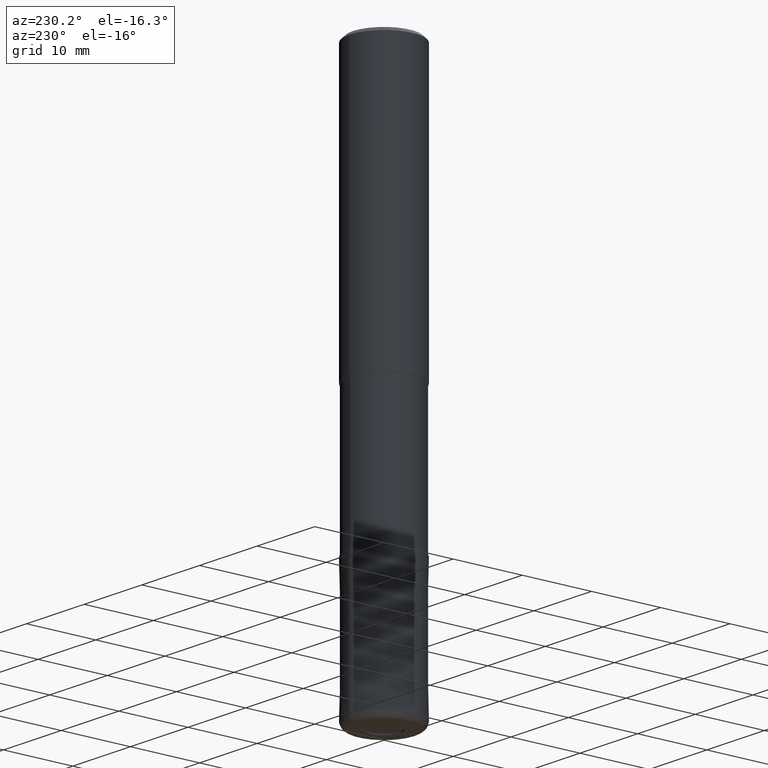
[diagram: clean part render]
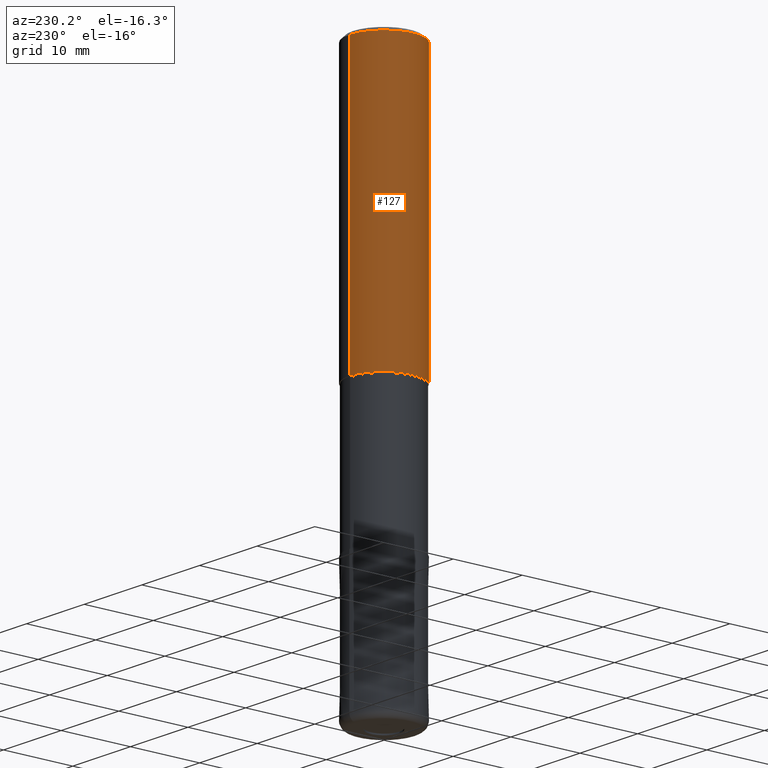
[diagram: same view with one face highlighted and labeled with its STEP entity id]
A machine part, auxiliary view. The second image highlights one B-rep face of the part: STEP entity #127.
In plain terms, the highlighted cylindrical surface (partial cylindrical patch) has radius 5 mm, axis along (-0, -0, 1).
Its self-contained STEP definition (entity closure, byte-faithful):
#127=ADVANCED_FACE('',(#315),#316,.T.);
#129=EDGE_CURVE('',#137,#133,#318,.T.);
#133=VERTEX_POINT('',#322);
#137=VERTEX_POINT('',#327);
#161=EDGE_CURVE('',#279,#133,#354,.T.);
#195=EDGE_CURVE('',#137,#251,#392,.T.);
#251=VERTEX_POINT('',#456);
#273=EDGE_CURVE('',#251,#279,#483,.T.);
#279=VERTEX_POINT('',#490);
#315=FACE_OUTER_BOUND('',#522,.T.);
#316=CYLINDRICAL_SURFACE('',#523,5.0);
#318=CIRCLE('',#526,5.0);
#322=CARTESIAN_POINT('',(0.0,5.0,-40.0));
#327=CARTESIAN_POINT('',(6.12303176911189E-016,-5.0,-40.0));
#354=LINE('',#569,#570);
#392=LINE('',#621,#622);
#456=CARTESIAN_POINT('',(6.12303176911189E-016,-5.0,-0.5));
#483=CIRCLE('',#733,5.0);
#490=CARTESIAN_POINT('',(0.0,5.0,-0.5));
#522=EDGE_LOOP('',(#763,#764,#765,#766));
#523=AXIS2_PLACEMENT_3D('',#767,#768,#769);
#526=AXIS2_PLACEMENT_3D('',#770,#771,#772);
#569=CARTESIAN_POINT('',(-6.12303176911189E-016,5.0,-20.25));
#570=VECTOR('',#815,1.0);
#621=CARTESIAN_POINT('',(6.12303176911189E-016,-5.0,-20.25));
#622=VECTOR('',#863,1.0);
#733=AXIS2_PLACEMENT_3D('',#977,#978,#979);
#763=ORIENTED_EDGE('',*,*,#161,.T.);
#764=ORIENTED_EDGE('',*,*,#129,.F.);
#765=ORIENTED_EDGE('',*,*,#195,.T.);
#766=ORIENTED_EDGE('',*,*,#273,.T.);
#767=CARTESIAN_POINT('',(0.0,0.0,-20.25));
#768=DIRECTION('',(-0.0,-0.0,1.0));
#769=DIRECTION('',(0.0,1.0,0.0));
#770=CARTESIAN_POINT('',(0.0,0.0,-40.0));
#771=DIRECTION('',(0.0,0.0,-1.0));
#772=DIRECTION('',(0.0,1.0,0.0));
#815=DIRECTION('',(0.0,0.0,-1.0));
#863=DIRECTION('',(-0.0,-0.0,1.0));
#977=CARTESIAN_POINT('',(0.0,0.0,-0.5));
#978=DIRECTION('',(0.0,0.0,-1.0));
#979=DIRECTION('',(0.0,1.0,0.0));